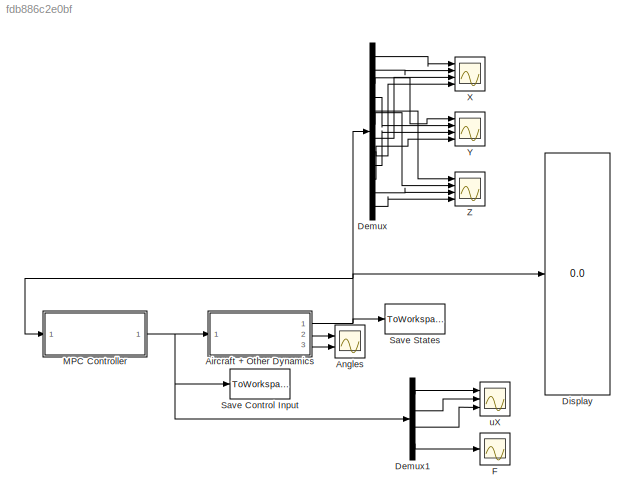
MODEL slx_fdb886c2e0bf
KIND model
CONFIG AbsTol = auto
CONFIG EnableMultiTasking = off
CONFIG FixedStep = tstep
CONFIG InitFcn = initMAX;
CONFIG MaxStep = tstep
CONFIG MinStep = auto
CONFIG RelTol = 1e-3
CONFIG SampleTimeConstraint = Unconstrained
CONFIG Solver = ode23t
CONFIG SolverName = ode23t
CONFIG StartTime = 0.0
CONFIG StopFcn = plotMAX;
CONFIG StopTime = 5
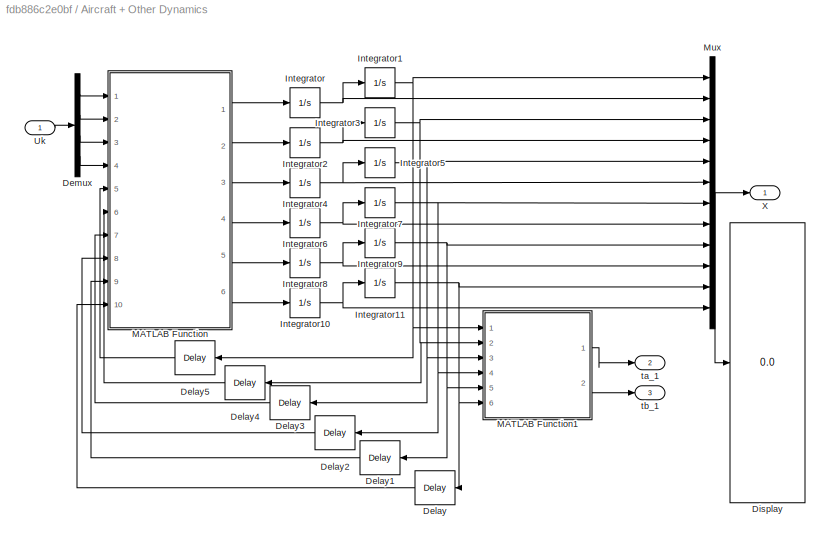
BLOCK [SubSystem] Aircraft + Other Dynamics
  Ports = [1, 3]
  RequestExecContextInheritance = off
  Variant = off
BLOCK [Delay] Aircraft + Other Dynamics/Delay
  DelayLength = 1
  InitialCondition = 1
  InputPortMap = u0
  Ports = [1, 1]
BLOCK [Delay] Aircraft + Other Dynamics/Delay1
  DelayLength = 1
  InputPortMap = u0
  Ports = [1, 1]
BLOCK [Delay] Aircraft + Other Dynamics/Delay2
  DelayLength = 1
  InitialCondition = 2.1
  InputPortMap = u0
  Ports = [1, 1]
BLOCK [Delay] Aircraft + Other Dynamics/Delay3
  DelayLength = 1
  InitialCondition = 2.2
  InputPortMap = u0
  Ports = [1, 1]
BLOCK [Delay] Aircraft + Other Dynamics/Delay4
  DelayLength = 1
  InputPortMap = u0
  Ports = [1, 1]
BLOCK [Delay] Aircraft + Other Dynamics/Delay5
  DelayLength = 1
  InitialCondition = 2.1
  InputPortMap = u0
  Ports = [1, 1]
BLOCK [Demux] Aircraft + Other Dynamics/Demux
  DisplayOption = bar
  Ports = [1, 4]
BLOCK [Display] Aircraft + Other Dynamics/Display
  Decimation = 1
  Ports = [1]
BLOCK [Integrator] Aircraft + Other Dynamics/Integrator
  Ports = [1, 1]
BLOCK [Integrator] Aircraft + Other Dynamics/Integrator1
  InitialCondition = 2.1
  Ports = [1, 1]
BLOCK [Integrator] Aircraft + Other Dynamics/Integrator10
  Ports = [1, 1]
BLOCK [Integrator] Aircraft + Other Dynamics/Integrator11
  InitialCondition = 1
  Ports = [1, 1]
BLOCK [Integrator] Aircraft + Other Dynamics/Integrator2
  Ports = [1, 1]
BLOCK [Integrator] Aircraft + Other Dynamics/Integrator3
  Ports = [1, 1]
BLOCK [Integrator] Aircraft + Other Dynamics/Integrator4
  Ports = [1, 1]
BLOCK [Integrator] Aircraft + Other Dynamics/Integrator5
  InitialCondition = 2.2
  Ports = [1, 1]
BLOCK [Integrator] Aircraft + Other Dynamics/Integrator6
  Ports = [1, 1]
BLOCK [Integrator] Aircraft + Other Dynamics/Integrator7
  InitialCondition = 2.1
  Ports = [1, 1]
BLOCK [Integrator] Aircraft + Other Dynamics/Integrator8
  Ports = [1, 1]
BLOCK [Integrator] Aircraft + Other Dynamics/Integrator9
  Ports = [1, 1]
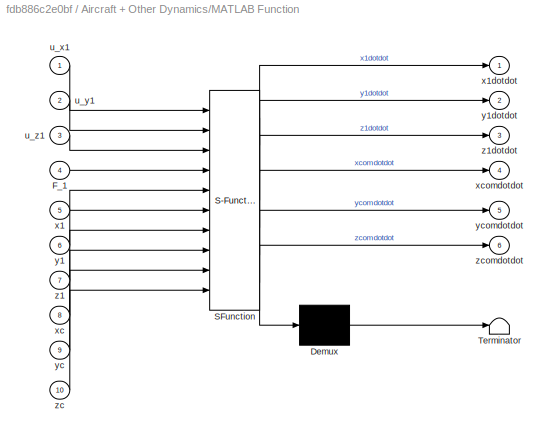
BLOCK [SubSystem] Aircraft + Other Dynamics/MATLAB Function
  ErrorFcn = Stateflow.Translate.translate
  PermitHierarchicalResolution = ExplicitOnly
  Ports = [10, 6]
  RequestExecContextInheritance = off
  SFBlockType = MATLAB Function
  TreatAsAtomicUnit = on
  Variant = off
BLOCK [Demux] Aircraft + Other Dynamics/MATLAB Function/ Demux 
  Outputs = 1
  Ports = [1, 1]
BLOCK [S-Function] Aircraft + Other Dynamics/MATLAB Function/ SFunction 
  EnableBusSupport = on
  FunctionName = sf_sfun
  PortCounts = [10 7]
  Ports = [10, 7]
  SFcnIsStateOwnerBlock = off
  SFunctionDeploymentMode = off
  Tag = Stateflow S-Function MAX 2
BLOCK [Terminator] Aircraft + Other Dynamics/MATLAB Function/ Terminator 
BLOCK [Inport] Aircraft + Other Dynamics/MATLAB Function/F_1
  IconDisplay = Port number
  Port = 4
BLOCK [Inport] Aircraft + Other Dynamics/MATLAB Function/u_x1
  IconDisplay = Port number
BLOCK [Inport] Aircraft + Other Dynamics/MATLAB Function/u_y1
  IconDisplay = Port number
  Port = 2
BLOCK [Inport] Aircraft + Other Dynamics/MATLAB Function/u_z1
  IconDisplay = Port number
  Port = 3
BLOCK [Inport] Aircraft + Other Dynamics/MATLAB Function/x1
  IconDisplay = Port number
  Port = 5
BLOCK [Outport] Aircraft + Other Dynamics/MATLAB Function/x1dotdot
  IconDisplay = Port number
BLOCK [Inport] Aircraft + Other Dynamics/MATLAB Function/xc
  IconDisplay = Port number
  Port = 8
BLOCK [Outport] Aircraft + Other Dynamics/MATLAB Function/xcomdotdot
  IconDisplay = Port number
  Port = 4
BLOCK [Inport] Aircraft + Other Dynamics/MATLAB Function/y1
  IconDisplay = Port number
  Port = 6
BLOCK [Outport] Aircraft + Other Dynamics/MATLAB Function/y1dotdot
  IconDisplay = Port number
  Port = 2
BLOCK [Inport] Aircraft + Other Dynamics/MATLAB Function/yc
  IconDisplay = Port number
  Port = 9
BLOCK [Outport] Aircraft + Other Dynamics/MATLAB Function/ycomdotdot
  IconDisplay = Port number
  Port = 5
BLOCK [Inport] Aircraft + Other Dynamics/MATLAB Function/z1
  IconDisplay = Port number
  Port = 7
BLOCK [Outport] Aircraft + Other Dynamics/MATLAB Function/z1dotdot
  IconDisplay = Port number
  Port = 3
BLOCK [Inport] Aircraft + Other Dynamics/MATLAB Function/zc
  IconDisplay = Port number
  Port = 10
BLOCK [Outport] Aircraft + Other Dynamics/MATLAB Function/zcomdotdot
  IconDisplay = Port number
  Port = 6
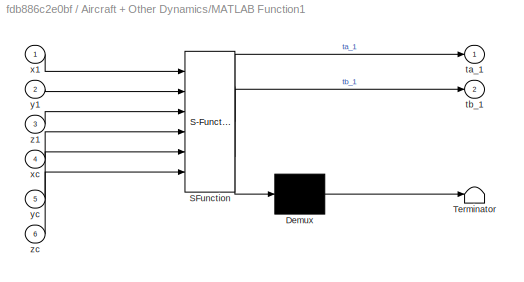
BLOCK [SubSystem] Aircraft + Other Dynamics/MATLAB Function1
  ErrorFcn = Stateflow.Translate.translate
  PermitHierarchicalResolution = ExplicitOnly
  Ports = [6, 2]
  RequestExecContextInheritance = off
  SFBlockType = MATLAB Function
  TreatAsAtomicUnit = on
  Variant = off
BLOCK [Demux] Aircraft + Other Dynamics/MATLAB Function1/ Demux 
  Outputs = 1
  Ports = [1, 1]
BLOCK [S-Function] Aircraft + Other Dynamics/MATLAB Function1/ SFunction 
  EnableBusSupport = on
  FunctionName = sf_sfun
  PortCounts = [6 3]
  Ports = [6, 3]
  SFcnIsStateOwnerBlock = off
  SFunctionDeploymentMode = off
  Tag = Stateflow S-Function MAX 1
BLOCK [Terminator] Aircraft + Other Dynamics/MATLAB Function1/ Terminator 
BLOCK [Outport] Aircraft + Other Dynamics/MATLAB Function1/ta_1
  IconDisplay = Port number
BLOCK [Outport] Aircraft + Other Dynamics/MATLAB Function1/tb_1
  IconDisplay = Port number
  Port = 2
BLOCK [Inport] Aircraft + Other Dynamics/MATLAB Function1/x1
  IconDisplay = Port number
BLOCK [Inport] Aircraft + Other Dynamics/MATLAB Function1/xc
  IconDisplay = Port number
  Port = 4
BLOCK [Inport] Aircraft + Other Dynamics/MATLAB Function1/y1
  IconDisplay = Port number
  Port = 2
BLOCK [Inport] Aircraft + Other Dynamics/MATLAB Function1/yc
  IconDisplay = Port number
  Port = 5
BLOCK [Inport] Aircraft + Other Dynamics/MATLAB Function1/z1
  IconDisplay = Port number
  Port = 3
BLOCK [Inport] Aircraft + Other Dynamics/MATLAB Function1/zc
  IconDisplay = Port number
  Port = 6
BLOCK [Mux] Aircraft + Other Dynamics/Mux
  DisplayOption = bar
  Inputs = 12
  Ports = [12, 1]
BLOCK [Inport] Aircraft + Other Dynamics/Uk
  IconDisplay = Port number
BLOCK [Outport] Aircraft + Other Dynamics/X
  IconDisplay = Port number
BLOCK [Outport] Aircraft + Other Dynamics/ta_1
  IconDisplay = Port number
  Port = 2
BLOCK [Outport] Aircraft + Other Dynamics/tb_1
  IconDisplay = Port number
  Port = 3
BLOCK [Scope] Angles
  NumInputPorts = 2
  Ports = [2]
  ScopeSpecificationString = Simulink.scopes.TimeScopeBlockCfg('CurrentConfiguration', extmgr.ConfigurationSet(extmgr.Configuration('Core','General UI',true),extmgr.Configuration('Core','Source UI',true),extmgr.Configuration('Sources','WiredSimulink',true,'DataLoggingVariableName','ScopeData1'),extmgr.Configuration('Visuals','Time Domain',true,'SerializedDisplays',{struct('MinYLimReal','-0.63327','MaxYLimReal','0.3874','YLabe...<+1420ch>
BLOCK [Demux] Demux
  DisplayOption = bar
  Outputs = 12
  Ports = [1, 12]
BLOCK [Demux] Demux1
  DisplayOption = bar
  Ports = [1, 4]
BLOCK [Display] Display
  Decimation = 1
  Ports = [1]
BLOCK [Scope] F
  NumInputPorts = 1
  Ports = [1]
  ScopeSpecificationString = Simulink.scopes.TimeScopeBlockCfg('CurrentConfiguration', extmgr.ConfigurationSet(extmgr.Configuration('Core','General UI',true),extmgr.Configuration('Core','Source UI',true),extmgr.Configuration('Sources','WiredSimulink',true,'DataLoggingVariableName','ScopeData1'),extmgr.Configuration('Visuals','Time Domain',true,'SerializedDisplays',{struct('MinYLimReal','18.37','MaxYLimReal','20.87','YLabelRea...<+1349ch>
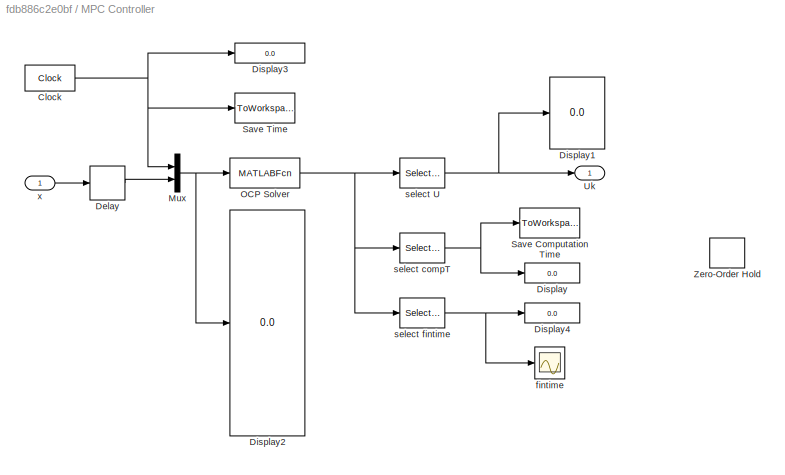
BLOCK [SubSystem] MPC Controller 
  Ports = [1, 1]
  RequestExecContextInheritance = off
  Variant = off
BLOCK [Clock] MPC Controller /Clock
  DisplayTime = on
BLOCK [Delay] MPC Controller /Delay
  DelayLength = 1
  InitialCondition = [problem.states.x0]
  InputPortMap = u0
  Ports = [1, 1]
BLOCK [Display] MPC Controller /Display
  Commented = on
  Decimation = 1
  Ports = [1]
BLOCK [Display] MPC Controller /Display1
  Decimation = 1
  Ports = [1]
BLOCK [Display] MPC Controller /Display2
  Decimation = 1
  Ports = [1]
BLOCK [Display] MPC Controller /Display3
  Decimation = 1
  Ports = [1]
BLOCK [Display] MPC Controller /Display4
  Commented = on
  Decimation = 1
  Ports = [1]
BLOCK [Mux] MPC Controller /Mux
  DisplayOption = bar
  Inputs = 2
  Ports = [2, 1]
BLOCK [MATLABFcn] MPC Controller /OCP Solver
  MATLABFcn = MAXSolver
  OutputDimensions = m+2
  Ports = [1, 1]
BLOCK [ToWorkspace] MPC Controller /Save Computation Time 
  Commented = on
  FixptAsFi = on
  MaxDataPoints = inf
  Ports = [1]
  SampleTime = tstep
  Save2DSignal = 2-D array (concatenate along first dimension)
  VariableName = Comp_Time
BLOCK [ToWorkspace] MPC Controller /Save Time
  FixptAsFi = on
  MaxDataPoints = inf
  Ports = [1]
  SampleTime = -1
  Save2DSignal = 2-D array (concatenate along first dimension)
  VariableName = T
BLOCK [Outport] MPC Controller /Uk
  IconDisplay = Port number
BLOCK [ZeroOrderHold] MPC Controller /Zero-Order Hold
  Commented = on
  SampleTime = tstep
BLOCK [Scope] MPC Controller /fintime
  Commented = on
  NumInputPorts = 1
  Ports = [1]
  ScopeSpecificationString = Simulink.scopes.TimeScopeBlockCfg('CurrentConfiguration', extmgr.ConfigurationSet(extmgr.Configuration('Core','General UI',true),extmgr.Configuration('Core','Source UI',true),extmgr.Configuration('Sources','WiredSimulink',true,'DataLoggingVariableName','ScopeData1'),extmgr.Configuration('Visuals','Time Domain',true),extmgr.Configuration('Tools','Plot Navigation',true),extmgr.Configuration('Tools',...<+40ch>
BLOCK [Selector] MPC Controller /select U
  IndexOptions = Index vector (dialog)
  Indices = 3:m+2
  OutputSizes = 1
  Ports = [1, 1]
BLOCK [Selector] MPC Controller /select compT
  Commented = on
  IndexOptions = Index vector (dialog)
  Indices = 2
  OutputSizes = 1
  Ports = [1, 1]
BLOCK [Selector] MPC Controller /select fintime
  Commented = on
  IndexOptions = Index vector (dialog)
  Indices = 1
  OutputSizes = 1
  Ports = [1, 1]
BLOCK [Inport] MPC Controller /x
  IconDisplay = Port number
BLOCK [ToWorkspace] Save Control Input
  FixptAsFi = on
  MaxDataPoints = inf
  Ports = [1]
  SampleTime = -1
  Save2DSignal = 2-D array (concatenate along first dimension)
  VariableName = U
BLOCK [ToWorkspace] Save States
  FixptAsFi = on
  MaxDataPoints = inf
  Ports = [1]
  SampleTime = -1
  Save2DSignal = 3-D array (concatenate along third dimension)
  SaveFormat = Timeseries
  VariableName = X
BLOCK [Scope] X
  NumInputPorts = 4
  Ports = [4]
  ScopeSpecificationString = Simulink.scopes.TimeScopeBlockCfg('CurrentConfiguration', extmgr.ConfigurationSet(extmgr.Configuration('Core','General UI',true),extmgr.Configuration('Core','Source UI',true),extmgr.Configuration('Sources','WiredSimulink',true,'DataLoggingVariableName','ScopeData2'),extmgr.Configuration('Visuals','Time Domain',true,'SerializedDisplays',{struct('MinYLimReal','-127551.94684','MaxYLimReal','62996.176...<+1501ch>
BLOCK [Scope] Y
  NumInputPorts = 4
  Ports = [4]
  ScopeSpecificationString = Simulink.scopes.TimeScopeBlockCfg('CurrentConfiguration', extmgr.ConfigurationSet(extmgr.Configuration('Core','General UI',true),extmgr.Configuration('Core','Source UI',true),extmgr.Configuration('Sources','WiredSimulink',true,'DataLoggingVariableName','ScopeData3'),extmgr.Configuration('Visuals','Time Domain',true,'SerializedDisplays',{struct('MinYLimReal','-0.0000007','MaxYLimReal','0.00000011',...<+1377ch>
BLOCK [Scope] Z
  NumInputPorts = 4
  Ports = [4]
  ScopeSpecificationString = Simulink.scopes.TimeScopeBlockCfg('CurrentConfiguration', extmgr.ConfigurationSet(extmgr.Configuration('Core','General UI',true),extmgr.Configuration('Core','Source UI',true),extmgr.Configuration('Sources','WiredSimulink',true,'DataLoggingVariableName','ScopeData4'),extmgr.Configuration('Visuals','Time Domain',true,'SerializedDisplays',{struct('MinYLimReal','-8.33884','MaxYLimReal','75.04958','YLa...<+1363ch>
BLOCK [Scope] uX
  NumInputPorts = 3
  Ports = [3]
  ScopeSpecificationString = Simulink.scopes.TimeScopeBlockCfg('CurrentConfiguration', extmgr.ConfigurationSet(extmgr.Configuration('Core','General UI',true),extmgr.Configuration('Core','Source UI',true),extmgr.Configuration('Sources','WiredSimulink',true,'DataLoggingVariableName','ScopeData1'),extmgr.Configuration('Visuals','Time Domain',true,'SerializedDisplays',{struct('MinYLimReal','-1.11883','MaxYLimReal','8.95332','YLab...<+1484ch>
LINE Aircraft + Other Dynamics/Delay1:1 -> Aircraft + Other Dynamics/MATLAB Function:9
LINE Aircraft + Other Dynamics/Delay2:1 -> Aircraft + Other Dynamics/MATLAB Function:8
LINE Aircraft + Other Dynamics/Delay3:1 -> Aircraft + Other Dynamics/MATLAB Function:7
LINE Aircraft + Other Dynamics/Delay4:1 -> Aircraft + Other Dynamics/MATLAB Function:6
LINE Aircraft + Other Dynamics/Delay5:1 -> Aircraft + Other Dynamics/MATLAB Function:5
LINE Aircraft + Other Dynamics/Delay:1 -> Aircraft + Other Dynamics/MATLAB Function:10
LINE Aircraft + Other Dynamics/Demux:1 -> Aircraft + Other Dynamics/MATLAB Function:1
LINE Aircraft + Other Dynamics/Demux:2 -> Aircraft + Other Dynamics/MATLAB Function:2
LINE Aircraft + Other Dynamics/Demux:3 -> Aircraft + Other Dynamics/MATLAB Function:3
LINE Aircraft + Other Dynamics/Demux:4 -> Aircraft + Other Dynamics/MATLAB Function:4
NET Aircraft + Other Dynamics/Integrator10:1 -> Aircraft + Other Dynamics/Integrator11:1, Aircraft + Other Dynamics/Mux:12
NET Aircraft + Other Dynamics/Integrator11:1 -> Aircraft + Other Dynamics/Delay:1, Aircraft + Other Dynamics/MATLAB Function1:6, Aircraft + Other Dynamics/Mux:11
NET Aircraft + Other Dynamics/Integrator1:1 -> Aircraft + Other Dynamics/Delay5:1, Aircraft + Other Dynamics/MATLAB Function1:1, Aircraft + Other Dynamics/Mux:1
NET Aircraft + Other Dynamics/Integrator2:1 -> Aircraft + Other Dynamics/Integrator3:1, Aircraft + Other Dynamics/Mux:4
NET Aircraft + Other Dynamics/Integrator3:1 -> Aircraft + Other Dynamics/Delay4:1, Aircraft + Other Dynamics/MATLAB Function1:2, Aircraft + Other Dynamics/Mux:3
NET Aircraft + Other Dynamics/Integrator4:1 -> Aircraft + Other Dynamics/Integrator5:1, Aircraft + Other Dynamics/Mux:6
NET Aircraft + Other Dynamics/Integrator5:1 -> Aircraft + Other Dynamics/Delay3:1, Aircraft + Other Dynamics/MATLAB Function1:3, Aircraft + Other Dynamics/Mux:5
NET Aircraft + Other Dynamics/Integrator6:1 -> Aircraft + Other Dynamics/Integrator7:1, Aircraft + Other Dynamics/Mux:8
NET Aircraft + Other Dynamics/Integrator7:1 -> Aircraft + Other Dynamics/Delay2:1, Aircraft + Other Dynamics/MATLAB Function1:4, Aircraft + Other Dynamics/Mux:7
NET Aircraft + Other Dynamics/Integrator8:1 -> Aircraft + Other Dynamics/Integrator9:1, Aircraft + Other Dynamics/Mux:10
NET Aircraft + Other Dynamics/Integrator9:1 -> Aircraft + Other Dynamics/Delay1:1, Aircraft + Other Dynamics/MATLAB Function1:5, Aircraft + Other Dynamics/Mux:9
NET Aircraft + Other Dynamics/Integrator:1 -> Aircraft + Other Dynamics/Integrator1:1, Aircraft + Other Dynamics/Mux:2
LINE Aircraft + Other Dynamics/MATLAB Function1:1 -> Aircraft + Other Dynamics/ta_1:1
LINE Aircraft + Other Dynamics/MATLAB Function1:2 -> Aircraft + Other Dynamics/tb_1:1
LINE Aircraft + Other Dynamics/MATLAB Function:1 -> Aircraft + Other Dynamics/Integrator:1
LINE Aircraft + Other Dynamics/MATLAB Function:2 -> Aircraft + Other Dynamics/Integrator2:1
LINE Aircraft + Other Dynamics/MATLAB Function:3 -> Aircraft + Other Dynamics/Integrator4:1
LINE Aircraft + Other Dynamics/MATLAB Function:4 -> Aircraft + Other Dynamics/Integrator6:1
LINE Aircraft + Other Dynamics/MATLAB Function:5 -> Aircraft + Other Dynamics/Integrator8:1
LINE Aircraft + Other Dynamics/MATLAB Function:6 -> Aircraft + Other Dynamics/Integrator10:1
NET Aircraft + Other Dynamics/Mux:1 -> Aircraft + Other Dynamics/Display:1, Aircraft + Other Dynamics/X:1
LINE Aircraft + Other Dynamics/Uk:1 -> Aircraft + Other Dynamics/Demux:1
NET Aircraft + Other Dynamics:1 -> Demux:1, Display:1, MPC Controller :1, Save States:1
LINE Aircraft + Other Dynamics:2 -> Angles:1
LINE Aircraft + Other Dynamics:3 -> Angles:2
LINE Demux1:1 -> uX:1
LINE Demux1:2 -> uX:2
LINE Demux1:3 -> uX:3
LINE Demux1:4 -> F:1
LINE Demux:1 -> X:1
LINE Demux:10 -> Y:4
LINE Demux:11 -> Z:3
LINE Demux:12 -> Z:4
LINE Demux:2 -> X:2
LINE Demux:3 -> Y:1
LINE Demux:4 -> Y:2
LINE Demux:5 -> Z:1
LINE Demux:6 -> Z:2
LINE Demux:7 -> X:3
LINE Demux:8 -> X:4
LINE Demux:9 -> Y:3
NET MPC Controller /Clock:1 -> MPC Controller /Display3:1, MPC Controller /Mux:1, MPC Controller /Save Time:1
LINE MPC Controller /Delay:1 -> MPC Controller /Mux:2
NET MPC Controller /Mux:1 -> MPC Controller /Display2:1, MPC Controller /OCP Solver:1
NET MPC Controller /OCP Solver:1 -> MPC Controller /select U:1, MPC Controller /select compT:1, MPC Controller /select fintime:1
NET MPC Controller /select U:1 -> MPC Controller /Display1:1, MPC Controller /Uk:1
NET MPC Controller /select compT:1 -> MPC Controller /Display:1, MPC Controller /Save Computation Time :1
NET MPC Controller /select fintime:1 -> MPC Controller /Display4:1, MPC Controller /fintime:1
LINE MPC Controller /x:1 -> MPC Controller /Delay:1
NET MPC Controller :1 -> Aircraft + Other Dynamics:1, Demux1:1, Save Control Input:1
note: NET lines group one-source signal fan-out (src -> all destinations, sorted); 1:1 wires keep LINE
CHART Aircraft + Other Dynamics/MATLAB Function1 states=1 transitions=1
  STATE_LABEL 'eML_blk_kernel()'
  STATE_LABEL 'SCRIPT:\nfunction [ta_1,tb_1] = updateAngles(x1,y1,z1,xc,yc,zc)\n\nta_1 = (x1-xc)/(z1-zc);\ntb_1 = (y1-yc)/(z1-zc);'
CHART Aircraft + Other Dynamics/MATLAB Function states=1 transitions=1
  STATE_LABEL 'eML_blk_kernel()'
  STATE_LABEL 'SCRIPT:\nfunction [x1dotdot,y1dotdot,z1dotdot,xcomdotdot,ycomdotdot,zcomdotdot]= dynamics(u_x1,u_y1,u_z1,F_1,x1,y1,z1,xc,yc,zc)\n\nm_ag = 0.81;\nm_pl = 2;\ng = 9.81;\n\nta_1 = (x1-xc)/(z1-zc);\ntb_1 = (y1-yc)/(z1-zc);\n\nx1dotdot =  (1/m_ag)*(u_x1 -F_1.*ta_1); %x1..\ny1dotdot =  (1/m_ag)*(u_y1 -F_1.*tb_1); %y1..\nz1dotdot =  (1/m_ag)*(u_z1 -F_1 -m_ag*g); %z1..\nxcomdotdot =  (1/m_pl)*(F_1.*ta_1);%xcom..\nycomdo...<+82ch>'
